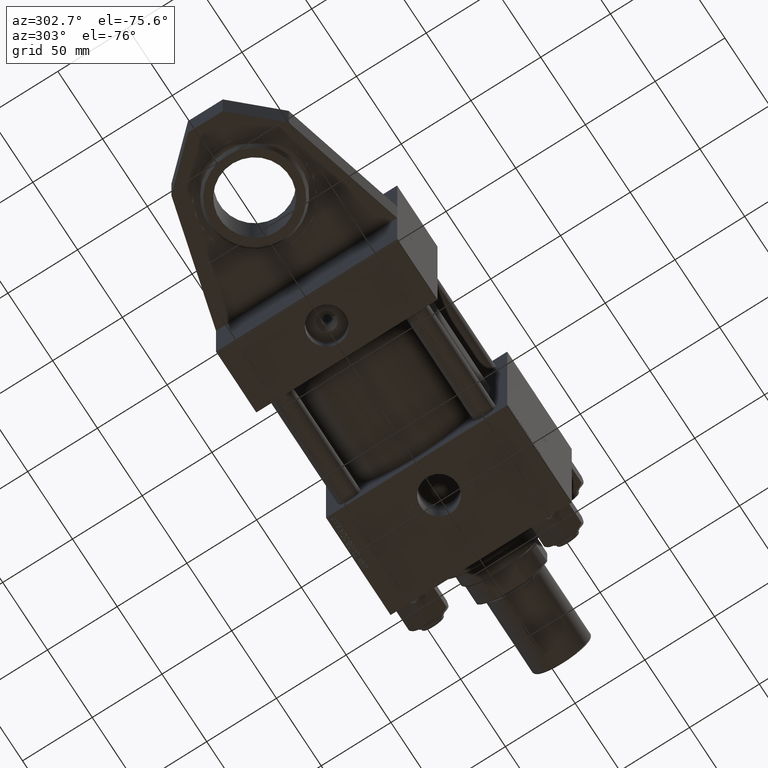
[diagram: clean part render]
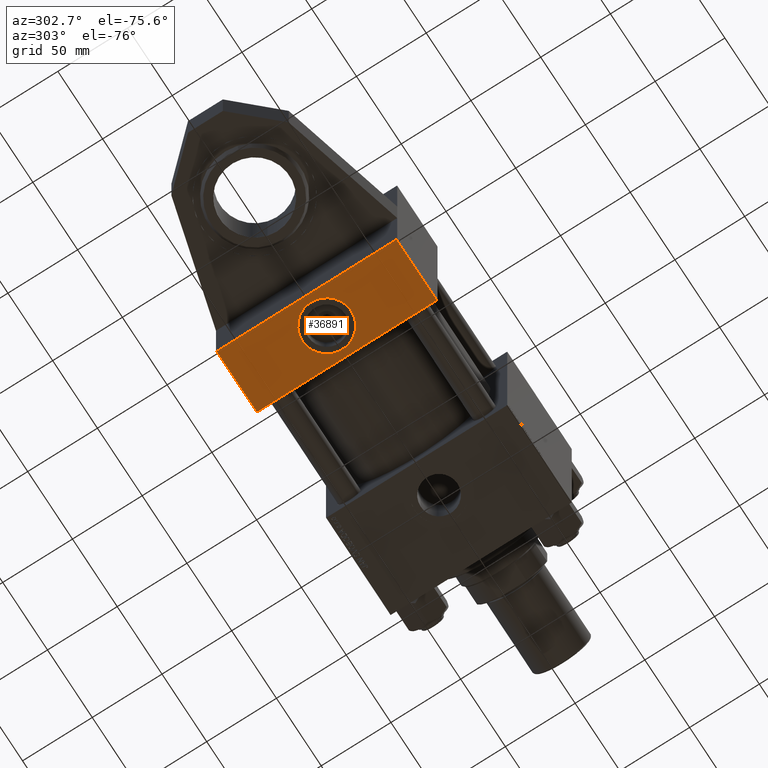
[diagram: same view with one face highlighted and labeled with its STEP entity id]
A machine part, auxiliary view. The second image highlights one B-rep face of the part: STEP entity #36891.
In plain terms, the highlighted planar face has unit normal (0, 0, 1).
Its self-contained STEP definition (entity closure, byte-faithful):
#1591 = ORIENTED_EDGE ( 'NONE', *, *, #52234, .F. ) ;
#2413 = FACE_OUTER_BOUND ( 'NONE', #47276, .T. ) ;
#2602 = CIRCLE ( 'NONE', #13777, 17.50000000000000000 ) ;
#3233 = VERTEX_POINT ( 'NONE', #28412 ) ;
#4205 = EDGE_CURVE ( 'NONE', #3233, #8453, #11690, .T. ) ;
#4909 = VECTOR ( 'NONE', #25523, 1000.000000000000000 ) ;
#5969 = CARTESIAN_POINT ( 'NONE',  ( 22.50000000000000000, -65.00000000000000000, -17.50000000000000000 ) ) ;
#7743 = ORIENTED_EDGE ( 'NONE', *, *, #4205, .F. ) ;
#8453 = VERTEX_POINT ( 'NONE', #28819 ) ;
#10587 = VECTOR ( 'NONE', #41252, 1000.000000000000000 ) ;
#11032 = DIRECTION ( 'NONE',  ( 0.000000000000000000, -0.000000000000000000, 1.000000000000000000 ) ) ;
#11482 = EDGE_LOOP ( 'NONE', ( #1591, #12224 ) ) ;
#11660 = DIRECTION ( 'NONE',  ( 1.000000000000000000, 0.000000000000000000, 0.000000000000000000 ) ) ;
#11690 = LINE ( 'NONE', #45544, #10587 ) ;
#12224 = ORIENTED_EDGE ( 'NONE', *, *, #22227, .F. ) ;
#13777 = AXIS2_PLACEMENT_3D ( 'NONE', #28816, #33385, #36882 ) ;
#17708 = CARTESIAN_POINT ( 'NONE',  ( 0.000000000000000000, -65.00000000000000000, -64.49999999999991473 ) ) ;
#18725 = ORIENTED_EDGE ( 'NONE', *, *, #24253, .T. ) ;
#18831 = CARTESIAN_POINT ( 'NONE',  ( 45.00000000000000000, -65.00000000000000000, 65.00000000000000000 ) ) ;
#19367 = DIRECTION ( 'NONE',  ( -0.000000000000000000, 1.000000000000000000, 0.000000000000000000 ) ) ;
#20263 = CARTESIAN_POINT ( 'NONE',  ( 45.00000000000000000, -65.00000000000000000, -64.49999999999991473 ) ) ;
#21740 = LINE ( 'NONE', #29811, #4909 ) ;
#21812 = EDGE_CURVE ( 'NONE', #43856, #23823, #21740, .T. ) ;
#22227 = EDGE_CURVE ( 'NONE', #22710, #36521, #31446, .T. ) ;
#22616 = DIRECTION ( 'NONE',  ( 0.000000000000000000, 0.000000000000000000, -1.000000000000000000 ) ) ;
#22710 = VERTEX_POINT ( 'NONE', #24932 ) ;
#23823 = VERTEX_POINT ( 'NONE', #17708 ) ;
#24253 = EDGE_CURVE ( 'NONE', #3233, #43856, #25140, .T. ) ;
#24932 = CARTESIAN_POINT ( 'NONE',  ( 22.50000000000000355, -65.00000000000000000, 17.50000000000000000 ) ) ;
#25140 = LINE ( 'NONE', #44767, #40915 ) ;
#25523 = DIRECTION ( 'NONE',  ( 0.000000000000000000, 0.000000000000000000, -1.000000000000000000 ) ) ;
#28331 = LINE ( 'NONE', #20263, #47919 ) ;
#28412 = CARTESIAN_POINT ( 'NONE',  ( 45.00000000000000000, -65.00000000000000000, 64.50000000000000000 ) ) ;
#28816 = CARTESIAN_POINT ( 'NONE',  ( 22.50000000000000000, -65.00000000000000000, 0.000000000000000000 ) ) ;
#28819 = CARTESIAN_POINT ( 'NONE',  ( 45.00000000000000000, -65.00000000000000000, -64.49999999999991473 ) ) ;
#29811 = CARTESIAN_POINT ( 'NONE',  ( 0.000000000000000000, -65.00000000000000000, 65.00000000000000000 ) ) ;
#29885 = DIRECTION ( 'NONE',  ( 0.000000000000000000, -1.000000000000000000, -8.673617379884036705E-17 ) ) ;
#31446 = CIRCLE ( 'NONE', #46141, 17.50000000000000000 ) ;
#32253 = PLANE ( 'NONE',  #50274 ) ;
#33385 = DIRECTION ( 'NONE',  ( 0.000000000000000000, -1.000000000000000000, -8.673617379884036705E-17 ) ) ;
#36521 = VERTEX_POINT ( 'NONE', #5969 ) ;
#36882 = DIRECTION ( 'NONE',  ( 0.000000000000000000, 0.000000000000000000, -1.000000000000000000 ) ) ;
#36891 = ADVANCED_FACE ( 'NONE', ( #51881, #2413 ), #32253, .F. ) ;
#37630 = ORIENTED_EDGE ( 'NONE', *, *, #21812, .T. ) ;
#40915 = VECTOR ( 'NONE', #49863, 1000.000000000000000 ) ;
#41252 = DIRECTION ( 'NONE',  ( 0.000000000000000000, 0.000000000000000000, -1.000000000000000000 ) ) ;
#43856 = VERTEX_POINT ( 'NONE', #50399 ) ;
#44767 = CARTESIAN_POINT ( 'NONE',  ( 45.00000000000000000, -65.00000000000000000, 64.50000000000000000 ) ) ;
#45544 = CARTESIAN_POINT ( 'NONE',  ( 45.00000000000000000, -65.00000000000000000, 65.00000000000000000 ) ) ;
#46141 = AXIS2_PLACEMENT_3D ( 'NONE', #50829, #29885, #22616 ) ;
#46173 = EDGE_CURVE ( 'NONE', #23823, #8453, #28331, .T. ) ;
#47276 = EDGE_LOOP ( 'NONE', ( #37630, #49131, #7743, #18725 ) ) ;
#47919 = VECTOR ( 'NONE', #11660, 1000.000000000000000 ) ;
#49131 = ORIENTED_EDGE ( 'NONE', *, *, #46173, .T. ) ;
#49863 = DIRECTION ( 'NONE',  ( -1.000000000000000000, 0.000000000000000000, 0.000000000000000000 ) ) ;
#50274 = AXIS2_PLACEMENT_3D ( 'NONE', #18831, #19367, #11032 ) ;
#50399 = CARTESIAN_POINT ( 'NONE',  ( 0.000000000000000000, -65.00000000000000000, 64.50000000000000000 ) ) ;
#50829 = CARTESIAN_POINT ( 'NONE',  ( 22.50000000000000000, -65.00000000000000000, 0.000000000000000000 ) ) ;
#51881 = FACE_BOUND ( 'NONE', #11482, .T. ) ;
#52234 = EDGE_CURVE ( 'NONE', #36521, #22710, #2602, .T. ) ;